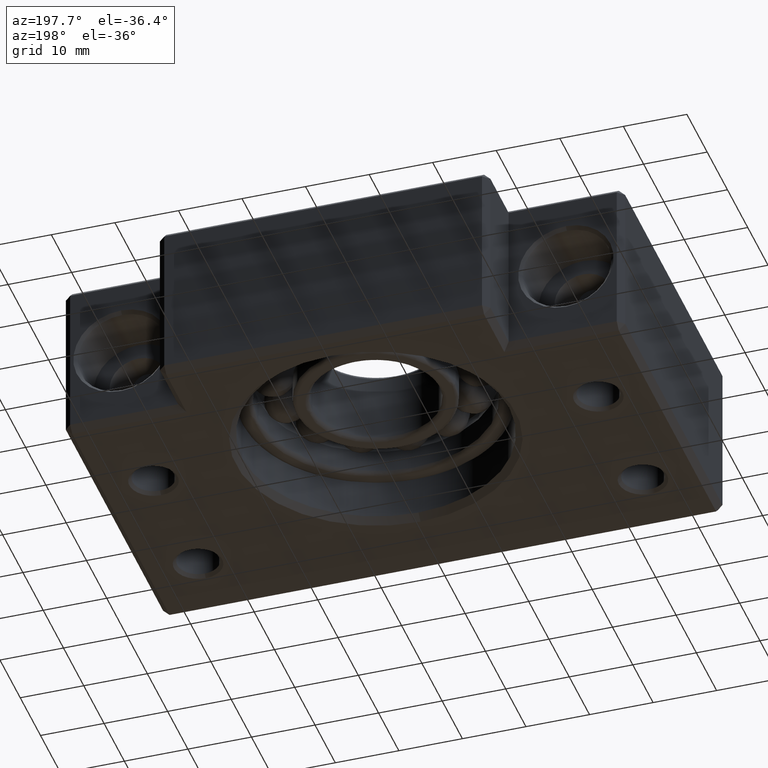
[diagram: clean part render]
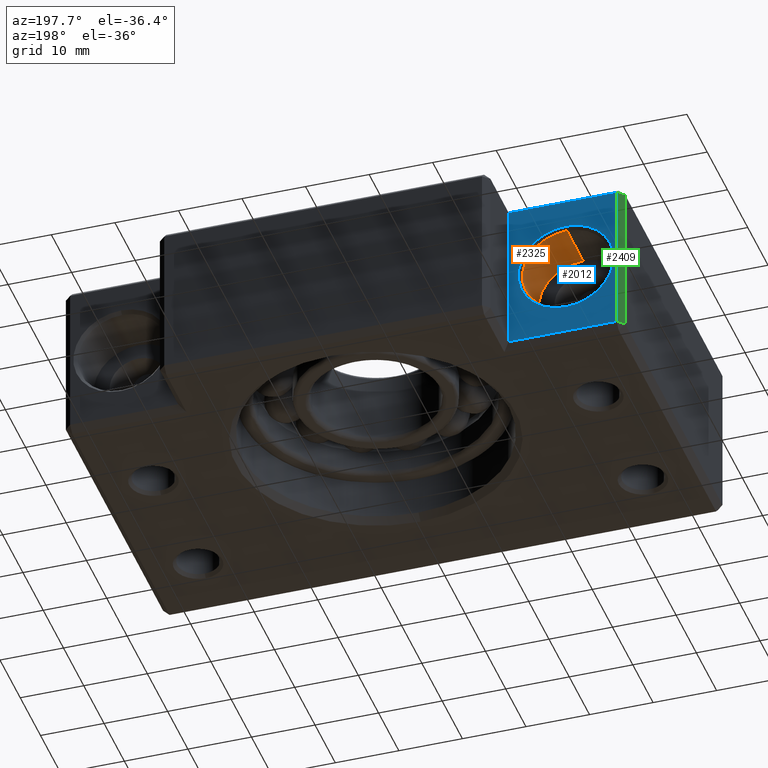
[diagram: same view with three faces highlighted in distinct colors, each labeled with its STEP entity id]
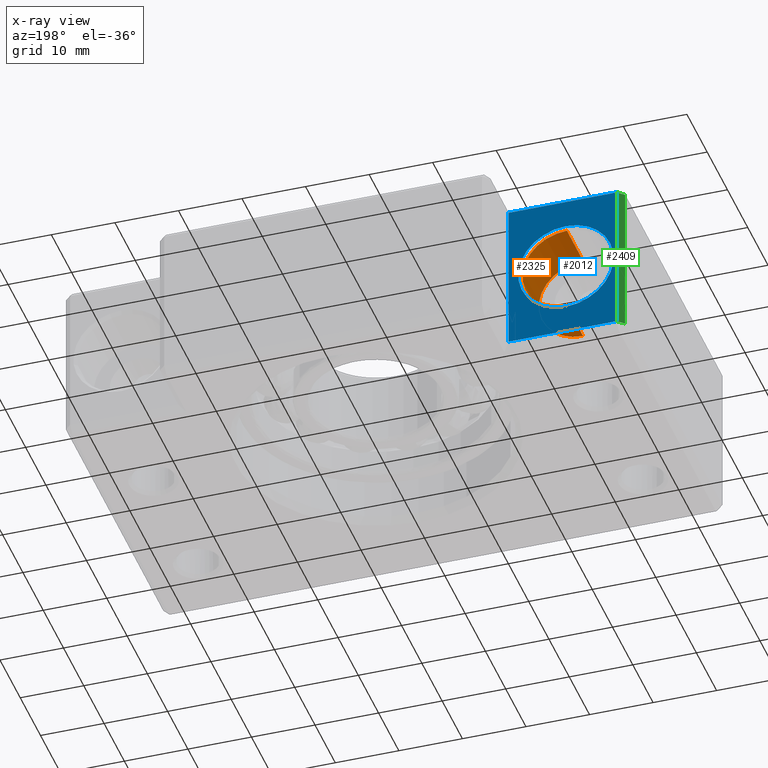
[diagram: x-ray of the same camera — body ghosted, the three highlighted faces saturated]
A machine part, auxiliary view with three faces highlighted in distinct colors.
The next image is the same camera in x-ray (body ghosted, the three faces saturated) — at least one of them is partly hidden behind the body in this view.
Their STEP definitions:

[orange] entity #2325 — the highlighted cylindrical surface (partial cylindrical patch) has radius 7 mm, axis along (0, 1, 0).
#23 = EDGE_LOOP ( 'NONE', ( #2519, #2618, #4671, #1614 ) ) ;
#163 = CARTESIAN_POINT ( 'NONE',  ( -35.00000000000000000, 41.50000000000000000, 0.0000000000000000000 ) ) ;
#174 = DIRECTION ( 'NONE',  ( -0.0000000000000000000, -1.000000000000000000, -0.0000000000000000000 ) ) ;
#180 = DIRECTION ( 'NONE',  ( 0.0000000000000000000, 0.0000000000000000000, 1.000000000000000000 ) ) ;
#387 = EDGE_CURVE ( 'NONE', #2831, #1510, #4345, .T. ) ;
#412 = LINE ( 'NONE', #961, #742 ) ;
#635 = CYLINDRICAL_SURFACE ( 'NONE', #1096, 6.999999999999999100 ) ;
#742 = VECTOR ( 'NONE', #902, 1000.000000000000000 ) ;
#902 = DIRECTION ( 'NONE',  ( 0.0000000000000000000, 1.000000000000000000, 0.0000000000000000000 ) ) ;
#961 = CARTESIAN_POINT ( 'NONE',  ( -35.00000000000000000, 50.00000000000000000, -6.999999999999999100 ) ) ;
#1066 = EDGE_CURVE ( 'NONE', #1510, #5000, #1124, .T. ) ;
#1096 = AXIS2_PLACEMENT_3D ( 'NONE', #1144, #1137, #1234 ) ;
#1118 = CARTESIAN_POINT ( 'NONE',  ( -35.00000000000000000, 41.50000000000000000, -6.999999999999999100 ) ) ;
#1124 = LINE ( 'NONE', #3538, #1240 ) ;
#1137 = DIRECTION ( 'NONE',  ( 0.0000000000000000000, 1.000000000000000000, 0.0000000000000000000 ) ) ;
#1144 = CARTESIAN_POINT ( 'NONE',  ( -35.00000000000000000, 50.00000000000000000, 0.0000000000000000000 ) ) ;
#1234 = DIRECTION ( 'NONE',  ( 0.0000000000000000000, 0.0000000000000000000, 1.000000000000000000 ) ) ;
#1240 = VECTOR ( 'NONE', #3384, 1000.000000000000000 ) ;
#1510 = VERTEX_POINT ( 'NONE', #4105 ) ;
#1614 = ORIENTED_EDGE ( 'NONE', *, *, #1636, .T. ) ;
#1636 = EDGE_CURVE ( 'NONE', #5000, #4416, #2185, .T. ) ;
#2185 = CIRCLE ( 'NONE', #2528, 7.000000000005002200 ) ;
#2325 = ADVANCED_FACE ( 'NONE', ( #2335 ), #635, .F. ) ;
#2335 = FACE_OUTER_BOUND ( 'NONE', #23, .T. ) ;
#2519 = ORIENTED_EDGE ( 'NONE', *, *, #2682, .F. ) ;
#2528 = AXIS2_PLACEMENT_3D ( 'NONE', #4252, #4259, #4262 ) ;
#2618 = ORIENTED_EDGE ( 'NONE', *, *, #387, .T. ) ;
#2682 = EDGE_CURVE ( 'NONE', #2831, #4416, #412, .T. ) ;
#2831 = VERTEX_POINT ( 'NONE', #1118 ) ;
#3384 = DIRECTION ( 'NONE',  ( 0.0000000000000000000, 1.000000000000000000, 0.0000000000000000000 ) ) ;
#3538 = CARTESIAN_POINT ( 'NONE',  ( -35.00000000000000000, 50.00000000000000000, 6.999999999999999100 ) ) ;
#3688 = AXIS2_PLACEMENT_3D ( 'NONE', #163, #174, #180 ) ;
#4099 = CARTESIAN_POINT ( 'NONE',  ( -35.00000000000000000, 49.50000000008003600, -7.000000000005002200 ) ) ;
#4105 = CARTESIAN_POINT ( 'NONE',  ( -35.00000000000000000, 41.50000000000000000, 6.999999999999999100 ) ) ;
#4252 = CARTESIAN_POINT ( 'NONE',  ( -35.00000000000000000, 49.50000000008003600, 0.0000000000000000000 ) ) ;
#4259 = DIRECTION ( 'NONE',  ( 0.0000000000000000000, 1.000000000000000000, 0.0000000000000000000 ) ) ;
#4262 = DIRECTION ( 'NONE',  ( 0.0000000000000000000, 0.0000000000000000000, 1.000000000000000000 ) ) ;
#4345 = CIRCLE ( 'NONE', #3688, 6.999999999999999100 ) ;
#4416 = VERTEX_POINT ( 'NONE', #4099 ) ;
#4441 = CARTESIAN_POINT ( 'NONE',  ( -35.00000000000000000, 49.50000000008003600, 7.000000000005002200 ) ) ;
#4671 = ORIENTED_EDGE ( 'NONE', *, *, #1066, .T. ) ;
#5000 = VERTEX_POINT ( 'NONE', #4441 ) ;

[blue] entity #2012 — the highlighted planar face has unit normal (0, -1, 0).
#168 = CARTESIAN_POINT ( 'NONE',  ( -43.00000000000000700, 50.00000000000000000, 12.00000000000002800 ) ) ;
#184 = CARTESIAN_POINT ( 'NONE',  ( -35.00000000000000000, 50.00000000001136900, -7.499999999993178800 ) ) ;
#290 = AXIS2_PLACEMENT_3D ( 'NONE', #5516, #5535, #5538 ) ;
#732 = LINE ( 'NONE', #3653, #5188 ) ;
#750 = CARTESIAN_POINT ( 'NONE',  ( -25.99999999999998900, 50.00000000000000000, -12.00000000000002300 ) ) ;
#857 = VECTOR ( 'NONE', #4857, 1000.000000000000000 ) ;
#936 = EDGE_LOOP ( 'NONE', ( #4627, #4616 ) ) ;
#987 = VECTOR ( 'NONE', #4468, 1000.000000000000000 ) ;
#1125 = CARTESIAN_POINT ( 'NONE',  ( -43.00000000000000700, 50.00000000000000000, -12.00000000000003900 ) ) ;
#1266 = LINE ( 'NONE', #4181, #987 ) ;
#1750 = CIRCLE ( 'NONE', #3189, 7.499999999993178800 ) ;
#1870 = LINE ( 'NONE', #2415, #3991 ) ;
#1924 = VERTEX_POINT ( 'NONE', #168 ) ;
#1948 = DIRECTION ( 'NONE',  ( 0.0000000000000000000, 0.0000000000000000000, 1.000000000000000000 ) ) ;
#1977 = CARTESIAN_POINT ( 'NONE',  ( -35.00000000000000000, 50.00000000001136900, 0.0000000000000000000 ) ) ;
#2012 = ADVANCED_FACE ( 'NONE', ( #3777, #3900 ), #5528, .F. ) ;
#2030 = LINE ( 'NONE', #4893, #857 ) ;
#2091 = DIRECTION ( 'NONE',  ( -0.0000000000000000000, 1.000000000000000000, 0.0000000000000000000 ) ) ;
#2119 = CARTESIAN_POINT ( 'NONE',  ( -35.00000000000000000, 50.00000000001136900, 7.499999999993178800 ) ) ;
#2272 = CARTESIAN_POINT ( 'NONE',  ( -25.99999999999998600, 50.00000000000001400, 12.00000000000002800 ) ) ;
#2414 = VERTEX_POINT ( 'NONE', #184 ) ;
#2415 = CARTESIAN_POINT ( 'NONE',  ( -25.99999999999998900, 50.00000000000000700, -12.00000000000002100 ) ) ;
#2554 = VERTEX_POINT ( 'NONE', #750 ) ;
#2577 = AXIS2_PLACEMENT_3D ( 'NONE', #2673, #2700, #2710 ) ;
#2673 = CARTESIAN_POINT ( 'NONE',  ( -35.00000000000000000, 50.00000000001136900, 0.0000000000000000000 ) ) ;
#2700 = DIRECTION ( 'NONE',  ( -0.0000000000000000000, 1.000000000000000000, 0.0000000000000000000 ) ) ;
#2710 = DIRECTION ( 'NONE',  ( 0.0000000000000000000, 0.0000000000000000000, 1.000000000000000000 ) ) ;
#2840 = VERTEX_POINT ( 'NONE', #1125 ) ;
#3116 = EDGE_LOOP ( 'NONE', ( #4651, #4643, #4639, #4636 ) ) ;
#3189 = AXIS2_PLACEMENT_3D ( 'NONE', #1977, #2091, #1948 ) ;
#3266 = DIRECTION ( 'NONE',  ( -1.000000000000000000, -0.0000000000000000000, -0.0000000000000000000 ) ) ;
#3653 = CARTESIAN_POINT ( 'NONE',  ( -25.99999999999998900, 50.00000000000000000, 12.00000000000002700 ) ) ;
#3750 = VERTEX_POINT ( 'NONE', #2119 ) ;
#3777 = FACE_OUTER_BOUND ( 'NONE', #3116, .T. ) ;
#3847 = VERTEX_POINT ( 'NONE', #2272 ) ;
#3900 = FACE_BOUND ( 'NONE', #936, .T. ) ;
#3991 = VECTOR ( 'NONE', #4366, 1000.000000000000000 ) ;
#4118 = CIRCLE ( 'NONE', #2577, 7.499999999993178800 ) ;
#4181 = CARTESIAN_POINT ( 'NONE',  ( -43.00000000000000700, 50.00000000000000000, 13.00000000000000200 ) ) ;
#4366 = DIRECTION ( 'NONE',  ( -1.000000000000000000, -0.0000000000000000000, -0.0000000000000000000 ) ) ;
#4468 = DIRECTION ( 'NONE',  ( 0.0000000000000000000, -0.0000000000000000000, -1.000000000000000000 ) ) ;
#4611 = EDGE_CURVE ( 'NONE', #2554, #3847, #2030, .T. ) ;
#4616 = ORIENTED_EDGE ( 'NONE', *, *, #5524, .F. ) ;
#4627 = ORIENTED_EDGE ( 'NONE', *, *, #5489, .F. ) ;
#4636 = ORIENTED_EDGE ( 'NONE', *, *, #4611, .F. ) ;
#4639 = ORIENTED_EDGE ( 'NONE', *, *, #5464, .F. ) ;
#4643 = ORIENTED_EDGE ( 'NONE', *, *, #5376, .F. ) ;
#4651 = ORIENTED_EDGE ( 'NONE', *, *, #4748, .T. ) ;
#4748 = EDGE_CURVE ( 'NONE', #2554, #2840, #1870, .T. ) ;
#4857 = DIRECTION ( 'NONE',  ( -0.0000000000000000000, 0.0000000000000000000, 1.000000000000000000 ) ) ;
#4893 = CARTESIAN_POINT ( 'NONE',  ( -25.99999999999998900, 50.00000000000000000, 13.00000000000000200 ) ) ;
#5188 = VECTOR ( 'NONE', #3266, 1000.000000000000000 ) ;
#5376 = EDGE_CURVE ( 'NONE', #1924, #2840, #1266, .T. ) ;
#5464 = EDGE_CURVE ( 'NONE', #3847, #1924, #732, .T. ) ;
#5489 = EDGE_CURVE ( 'NONE', #3750, #2414, #4118, .T. ) ;
#5516 = CARTESIAN_POINT ( 'NONE',  ( -25.99999999999998900, 50.00000000000000000, 13.00000000000000200 ) ) ;
#5524 = EDGE_CURVE ( 'NONE', #2414, #3750, #1750, .T. ) ;
#5528 = PLANE ( 'NONE',  #290 ) ;
#5535 = DIRECTION ( 'NONE',  ( 0.0000000000000000000, -1.000000000000000000, 0.0000000000000000000 ) ) ;
#5538 = DIRECTION ( 'NONE',  ( 0.0000000000000000000, -0.0000000000000000000, -1.000000000000000000 ) ) ;

[green] entity #2409 — the highlighted planar face has unit normal (0.7071, -0.7071, 0).
#35 = AXIS2_PLACEMENT_3D ( 'NONE', #234, #371, #215 ) ;
#168 = CARTESIAN_POINT ( 'NONE',  ( -43.00000000000000700, 50.00000000000000000, 12.00000000000002800 ) ) ;
#215 = DIRECTION ( 'NONE',  ( 0.7071067811865474600, 0.7071067811865474600, 0.0000000000000000000 ) ) ;
#226 = PLANE ( 'NONE',  #35 ) ;
#234 = CARTESIAN_POINT ( 'NONE',  ( -43.99999999999998600, 49.00000000000002800, 13.00000000000000200 ) ) ;
#371 = DIRECTION ( 'NONE',  ( 0.7071067811865475700, -0.7071067811865475700, 0.0000000000000000000 ) ) ;
#849 = CARTESIAN_POINT ( 'NONE',  ( -43.99999999999998600, 49.00000000000002800, -12.00000000000003600 ) ) ;
#939 = ORIENTED_EDGE ( 'NONE', *, *, #1488, .F. ) ;
#987 = VECTOR ( 'NONE', #4468, 1000.000000000000000 ) ;
#1125 = CARTESIAN_POINT ( 'NONE',  ( -43.00000000000000700, 50.00000000000000000, -12.00000000000003900 ) ) ;
#1266 = LINE ( 'NONE', #4181, #987 ) ;
#1349 = CARTESIAN_POINT ( 'NONE',  ( -43.99999999999998600, 49.00000000000003600, 12.00000000000002800 ) ) ;
#1488 = EDGE_CURVE ( 'NONE', #1924, #2306, #1618, .T. ) ;
#1537 = FACE_OUTER_BOUND ( 'NONE', #3334, .T. ) ;
#1618 = LINE ( 'NONE', #3823, #2014 ) ;
#1924 = VERTEX_POINT ( 'NONE', #168 ) ;
#1939 = ORIENTED_EDGE ( 'NONE', *, *, #5376, .T. ) ;
#1994 = ORIENTED_EDGE ( 'NONE', *, *, #5411, .F. ) ;
#2014 = VECTOR ( 'NONE', #3826, 1000.000000000000100 ) ;
#2039 = ORIENTED_EDGE ( 'NONE', *, *, #5277, .T. ) ;
#2306 = VERTEX_POINT ( 'NONE', #1349 ) ;
#2409 = ADVANCED_FACE ( 'NONE', ( #1537 ), #226, .F. ) ;
#2532 = VECTOR ( 'NONE', #3997, 1000.000000000000000 ) ;
#2647 = VERTEX_POINT ( 'NONE', #849 ) ;
#2840 = VERTEX_POINT ( 'NONE', #1125 ) ;
#3278 = VECTOR ( 'NONE', #3844, 1000.000000000000100 ) ;
#3334 = EDGE_LOOP ( 'NONE', ( #1939, #1994, #2039, #939 ) ) ;
#3823 = CARTESIAN_POINT ( 'NONE',  ( -43.99999999999998600, 49.00000000000002800, 12.00000000000002700 ) ) ;
#3826 = DIRECTION ( 'NONE',  ( -0.7071067811865474600, -0.7071067811865474600, -0.0000000000000000000 ) ) ;
#3844 = DIRECTION ( 'NONE',  ( 0.7071067811865474600, 0.7071067811865474600, 0.0000000000000000000 ) ) ;
#3926 = CARTESIAN_POINT ( 'NONE',  ( -43.99999999999998600, 49.00000000000002800, -12.00000000000004300 ) ) ;
#3997 = DIRECTION ( 'NONE',  ( -0.0000000000000000000, -0.0000000000000000000, 1.000000000000000000 ) ) ;
#4181 = CARTESIAN_POINT ( 'NONE',  ( -43.00000000000000700, 50.00000000000000000, 13.00000000000000200 ) ) ;
#4349 = LINE ( 'NONE', #3926, #3278 ) ;
#4468 = DIRECTION ( 'NONE',  ( 0.0000000000000000000, -0.0000000000000000000, -1.000000000000000000 ) ) ;
#4725 = LINE ( 'NONE', #5283, #2532 ) ;
#5277 = EDGE_CURVE ( 'NONE', #2647, #2306, #4725, .T. ) ;
#5283 = CARTESIAN_POINT ( 'NONE',  ( -43.99999999999998600, 49.00000000000002800, 13.00000000000000200 ) ) ;
#5376 = EDGE_CURVE ( 'NONE', #1924, #2840, #1266, .T. ) ;
#5411 = EDGE_CURVE ( 'NONE', #2647, #2840, #4349, .T. ) ;